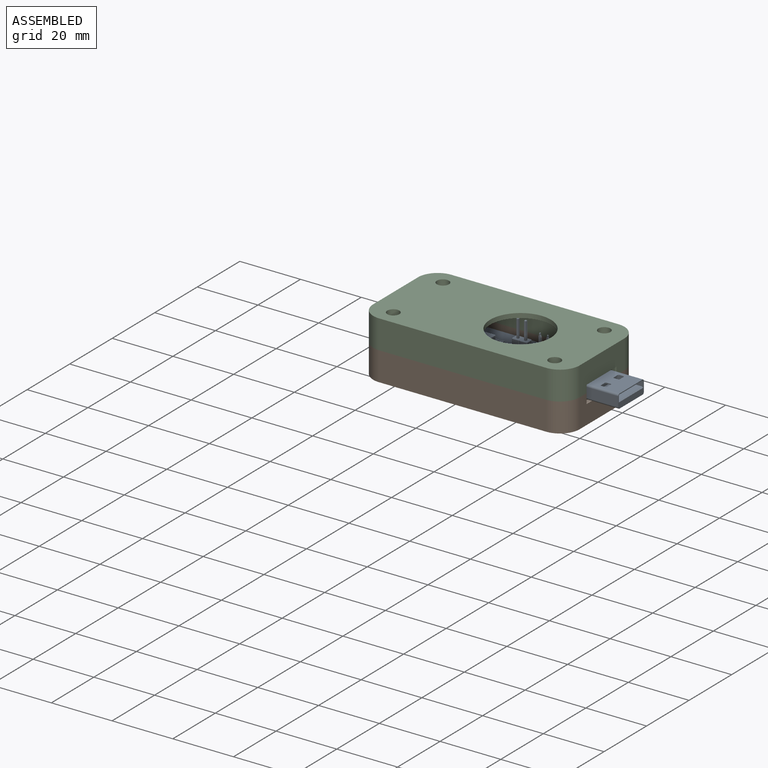
[diagram: assembled view]
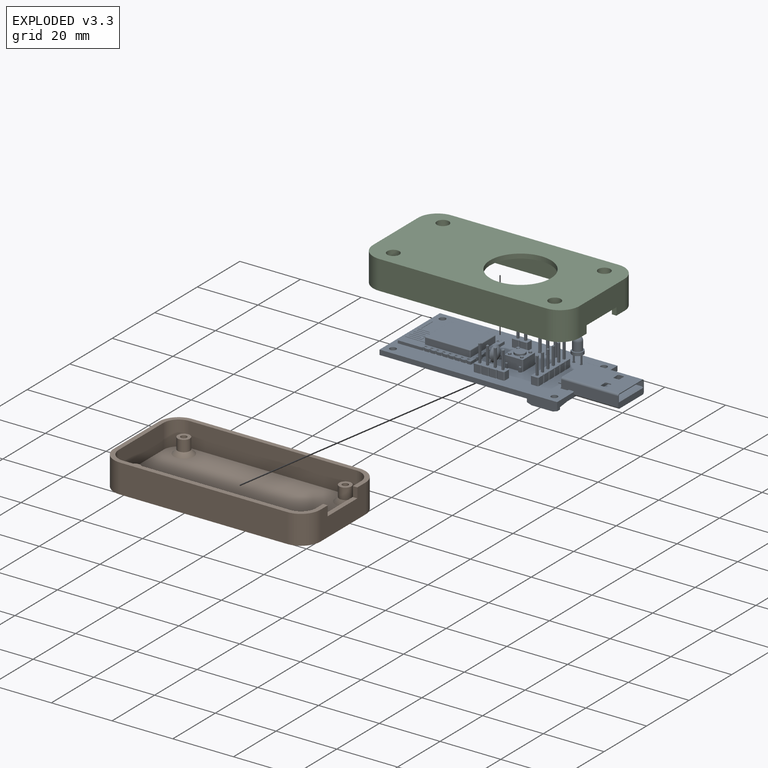
[diagram: exploded view]
GUIDED TOUR — FREECAD ASSEMBLY "dhtmon"

This assembly has 3 components, labeled P0..P2 below (a component is one placed body or linked part; the same part can appear more than once), held together by 0 modeled joints plus 3 derived contact edges. A joint is a constraint between two components; its type names the relative motion it leaves free:
  CONTACT — a derived adjacency edge — the two components touch in the source model (clearance under 2% of the assembly's diagonal); it is measured from the geometry, not a modeled constraint.
Axis/direction vectors are unit vectors and 'through' points are millimeter coordinates, both in the assembly's world frame.

MATES
  1. CONTACT "contact_0_1": P0 <-> P1, contact direction (-0.836, -0.013, -0.549) through (59.06, 26.17, 5.00) mm (derived from contact, not a modeled constraint)
  2. CONTACT "contact_0_2": P0 <-> P2, contact direction (0.000, 0.000, 1.000) through (6.00, 4.94, 6.65) mm (derived from contact, not a modeled constraint)
  3. CONTACT "contact_1_2": P1 <-> P2, contact direction (0.000, 0.000, 1.000) through (0.02, 4.51, 8.00) mm (derived from contact, not a modeled constraint)

ASSEMBLY ORDER
  1. P0 — the base component [order heuristic]
  2. P1 — core [order heuristic]
  3. P2 [order verified]
Order-tag legend:
  [order verified] — this step's position reverses a verified removal order: the component was checked to insert without passing through the ones already placed.
  [order heuristic] — the first 2 components form the assembly's core: parts whose collision-free extraction could not be verified, listed in mate-graph order.

Of the 3 components, 2 carry a construction recipe — the FreeCAD feature program (sketches with constraints, then the solid features that consume them) that regenerates the part from scratch, quoted from this document or from the linked companion document it references; the rest are supplied as boundary geometry only. The tour below walks the components in assembly order: each is shown spotlighted twice — in the assembled view, then in the exploded view, where a leader line traces a displaced component back to its assembled socket (components that stay in place when exploded have no leader line; saturated green if recipe-attached, orange if geometry-only; every other component desaturated gray) — followed by its recipe or geometry summary and the mates that hold it.
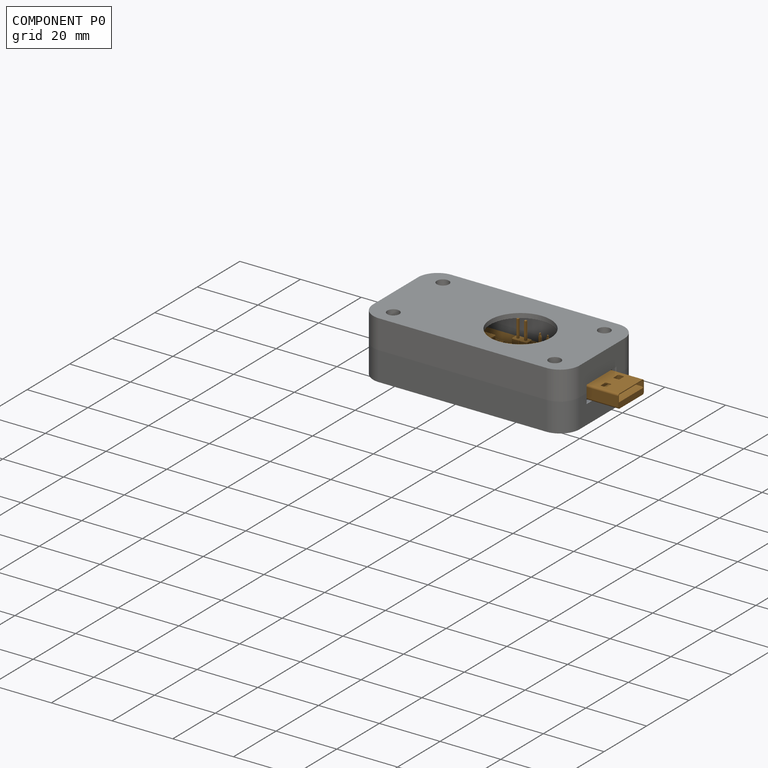
[diagram: component P0 — assembled]
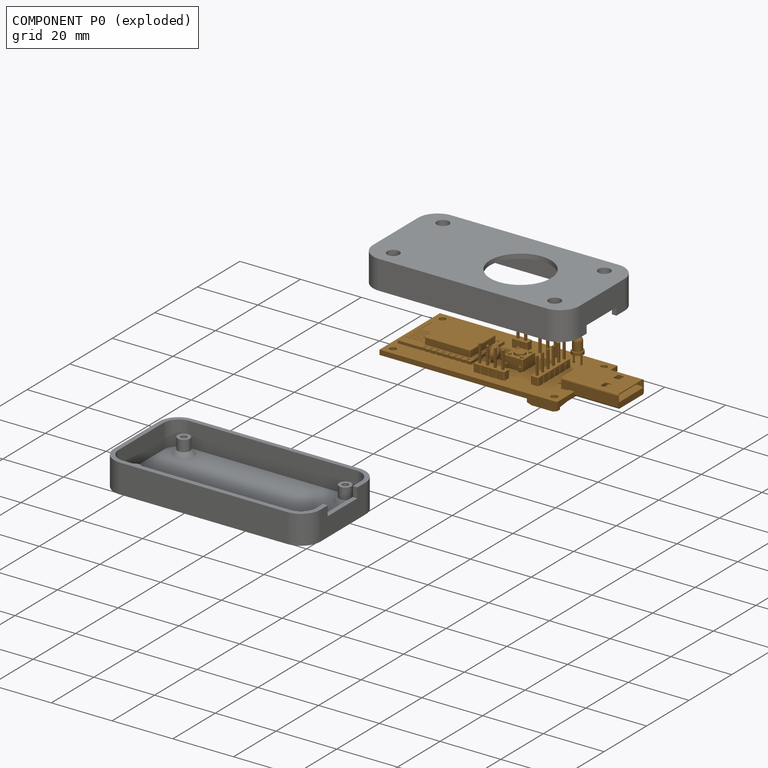
[diagram: component P0 — exploded]
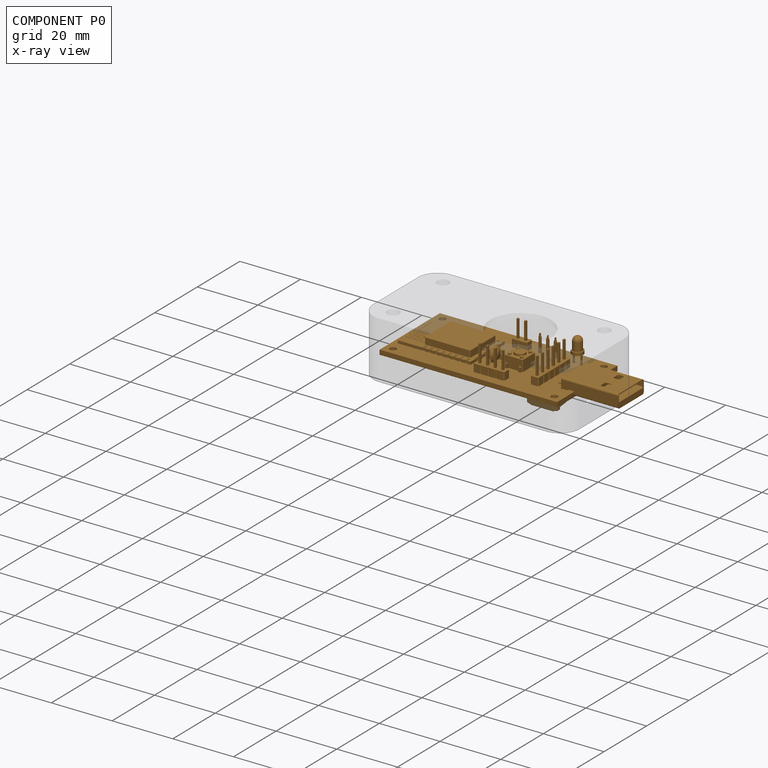
[diagram: component P0 — x-ray view]
COMPONENT P0 — geometry summary ("dhtmon"; no construction recipe available for this part):
  bounding box: 73.1 x 28.4 x 23.5 mm
  tessellated surface: 78,392 triangles
  volume: 4970 mm^3 (10% of its bounding box)
Held by: resting contact with P1 (derived edge); resting contact with P2 (derived edge).
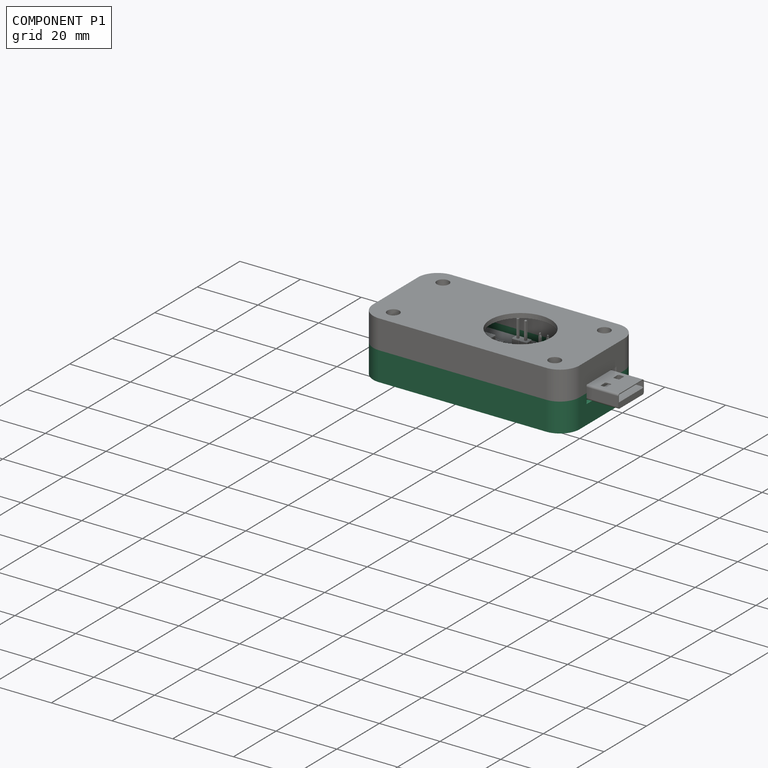
[diagram: component P1 — assembled]
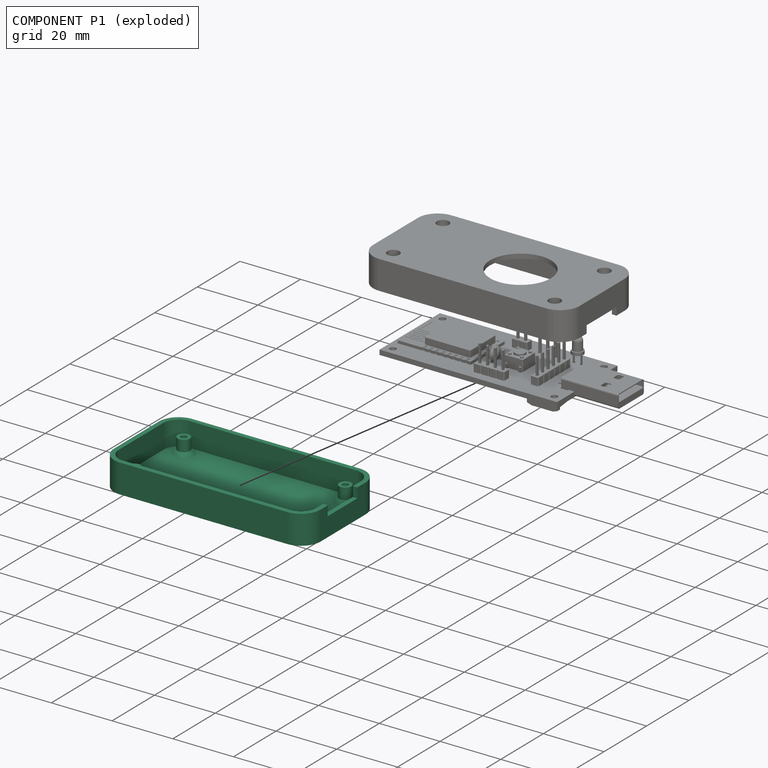
[diagram: component P1 — exploded]
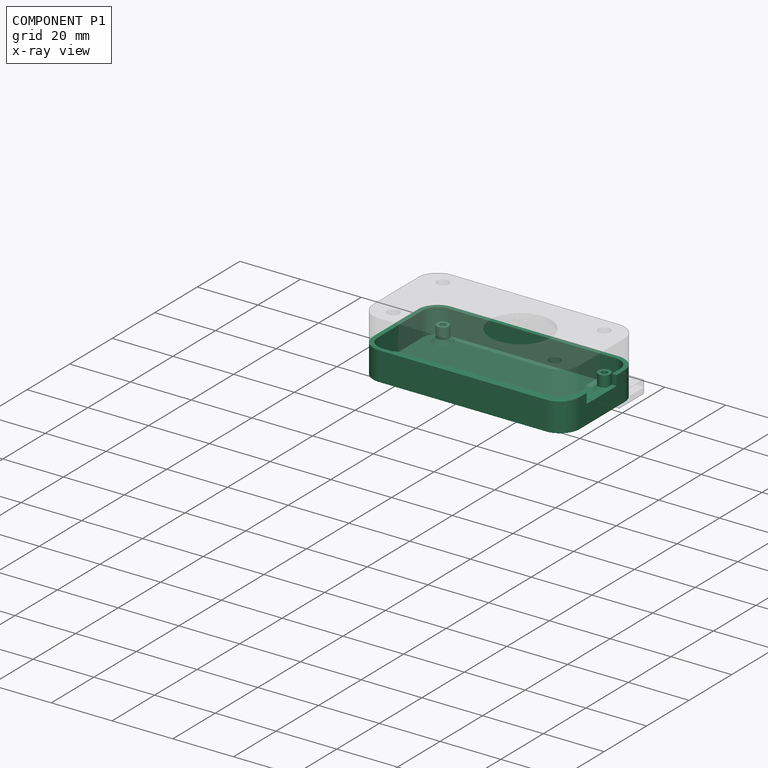
[diagram: component P1 — x-ray view]
COMPONENT P1 — recipe-attached ("Box_Bottom", modeled in this document).
Held by: resting contact with P0 (derived edge); resting contact with P2 (derived edge).
Construction recipe (the document's own serialized feature program — sketch geometry with constraints, then the solid features built on it; lengths are millimeters unless a unit is written):

FEATURE [PartDesign::AdditiveBox] Box
  AttacherType = Attacher::AttachEngine3D
  Height = 8
  Length = 65
  Width = 31
FEATURE [PartDesign::Fillet] Fillet
  Base = -> Box [Edge5,Edge7,Edge3,Edge1]
  BaseFeature = -> Box
  Radius = 5
  SupportTransform = false
  UseAllEdges = false
FEATURE [PartDesign::Thickness] Thickness
  Base = -> Fillet [Face2]
  BaseFeature = -> Fillet
  Intersection = false
  Join = 1
  Mode = 1
  SupportTransform = false
  Value = 1.5
FEATURE [Sketcher::SketchObject] Sketch
  FullyConstrained = true
  MapMode = 5
  Support = -> [Thickness]
  expr: Constraints[10] = (Box.Width - .Constraints.HW) / 2
  expr: Constraints[11] = (Box.Length - .Constraints.HL) / 2
  sketch-geometry (12):
    g0: LineSegment StartX=5.915 StartY=27.155 StartZ=0 EndX=59.085 EndY=27.155 EndZ=0
    g1: LineSegment StartX=59.085 StartY=27.155 StartZ=0 EndX=59.085 EndY=3.845 EndZ=0
    g2: LineSegment StartX=59.085 StartY=3.845 StartZ=0 EndX=5.915 EndY=3.845 EndZ=0
    g3: LineSegment StartX=5.915 StartY=3.845 StartZ=0 EndX=5.915 EndY=27.155 EndZ=0
    g4: Circle CenterX=5.915 CenterY=27.155 CenterZ=0 NormalX=0 NormalY=0 NormalZ=1 AngleXU=0 Radius=1
    g5: Circle CenterX=5.915 CenterY=3.845 CenterZ=0 NormalX=0 NormalY=0 NormalZ=1 AngleXU=0 Radius=1
    g6: Circle CenterX=59.085 CenterY=3.845 CenterZ=0 NormalX=0 NormalY=0 NormalZ=1 AngleXU=0 Radius=1
    g7: Circle CenterX=59.085 CenterY=27.155 CenterZ=0 NormalX=0 NormalY=0 NormalZ=1 AngleXU=0 Radius=1
    g8: Circle CenterX=5.915 CenterY=27.155 CenterZ=0 NormalX=0 NormalY=0 NormalZ=1 AngleXU=0 Radius=2
    g9: Circle CenterX=5.915 CenterY=3.845 CenterZ=0 NormalX=0 NormalY=0 NormalZ=1 AngleXU=0 Radius=2
    g10: Circle CenterX=59.085 CenterY=3.845 CenterZ=0 NormalX=0 NormalY=0 NormalZ=1 AngleXU=0 Radius=2
    g11: Circle CenterX=59.085 CenterY=27.155 CenterZ=0 NormalX=0 NormalY=0 NormalZ=1 AngleXU=0 Radius=2
  constraints (28):
    c: Coincident(g0,g1)
    c: Coincident(g1,g2)
    c: Coincident(g2,g3)
    c: Coincident(g3,g0)
    c: Horizontal(g0)
    c: Horizontal(g2)
    c: Vertical(g1)
    c: Vertical(g3)
    c: DistanceX(g0,g0) = 53.17  'HL'
    c: DistanceY(g1,g1) = 23.31  'HW'
    c: DistanceY(g2) = 3.845
    c: DistanceX(g2) = 5.915
    c: Coincident(g4,g0)
    c: Coincident(g5,g2)
    c: Coincident(g6,g1)
    c: Coincident(g7,g0)
    c: Equal(g7,g4)
    c: Equal(g7,g5)
    c: Equal(g7,g6)
    c: Diameter(g7) = 2
    c: Coincident(g8,g4)
    c: Coincident(g9,g5)
    c: Coincident(g10,g6)
    c: Coincident(g11,g7)
    c: Equal(g11,g8)
    c: Equal(g11,g9)
    c: Equal(g11,g10)
    c: Diameter(g11) = 4
FEATURE [PartDesign::Pad] Pad
  BaseFeature = -> Thickness
  Direction = (0,0,1)
  Length = 5
  Length2 = 10
  Profile = -> Sketch
  ReferenceAxis = -> Sketch [N_Axis]
  Type = 0
FEATURE [Sketcher::SketchObject] Sketch001
  FullyConstrained = true
  MapMode = 5
  Placement = pos=(66.5,0,0) rot=(0.57735,0.57735,0.57735;2.0944rad)
  Support = -> [Pad]
  expr: .Constraints.REFH = (Box.Width - .Constraints.HL) / 2 - 0.25 mm
  sketch-geometry (4):
    g0: LineSegment StartX=8.25 StartY=10.25 StartZ=0 EndX=22.25 EndY=10.25 EndZ=0
    g1: LineSegment StartX=22.25 StartY=10.25 StartZ=0 EndX=22.25 EndY=4.75 EndZ=0
    g2: LineSegment StartX=22.25 StartY=4.75 StartZ=0 EndX=8.25 EndY=4.75 EndZ=0
    g3: LineSegment StartX=8.25 StartY=4.75 StartZ=0 EndX=8.25 EndY=10.25 EndZ=0
  constraints (12):
    c: Coincident(g0,g1)
    c: Coincident(g1,g2)
    c: Coincident(g2,g3)
    c: Coincident(g3,g0)
    c: Horizontal(g0)
    c: Horizontal(g2)
    c: Vertical(g1)
    c: Vertical(g3)
    c: DistanceX(g0,g0) = 14  'HL'
    c: DistanceY(g3,g3) = 5.5  'HH'
    c: DistanceX(g2) = 8.25  'REFH'
    c: DistanceY(g2) = 4.75
FEATURE [PartDesign::Pocket] Pocket
  BaseFeature = -> Pad
  Direction = (-1,0,0)
  Length = 5
  Length2 = 5
  Profile = -> Sketch001
  ReferenceAxis = -> Sketch001 [N_Axis]
  Type = 2
FEATURE [PartDesign::Chamfer] Chamfer001
  Angle = 45
  Base = -> Pocket [Edge36,Edge35,Edge33,Edge34]
  BaseFeature = -> Pocket
  ChamferType = 0
  FlipDirection = false
  Size = 1.3
  Size2 = 1
  SupportTransform = false
  UseAllEdges = false
FEATURE [PartDesign::Body] Body  label="Box_Bottom"
  Group = -> [Box,Fillet,Thickness,Sketch,Pad,Sketch001,Pocket,Chamfer001]
  Origin = -> Origin
  Tip = -> Chamfer001
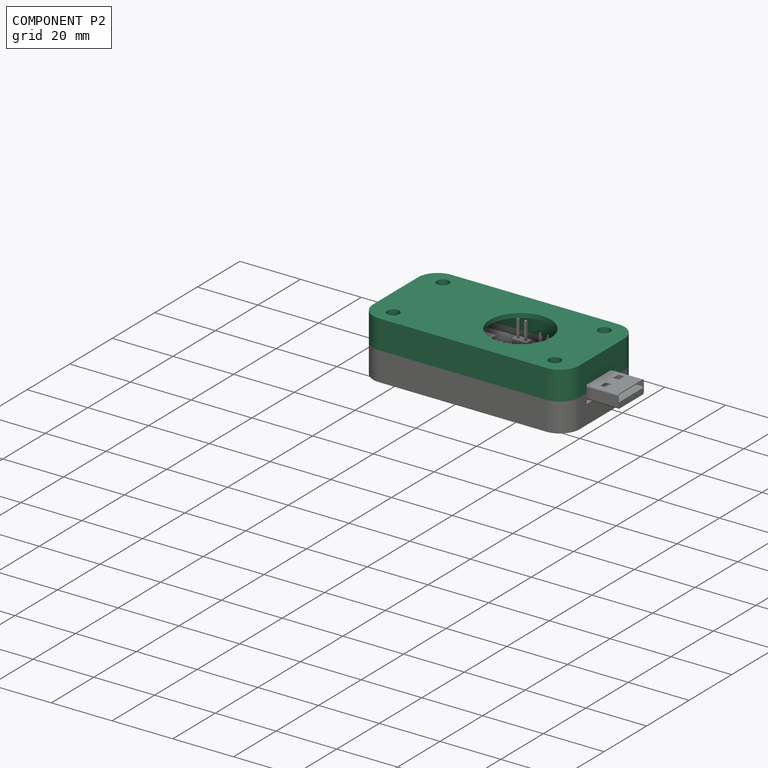
[diagram: component P2 — assembled]
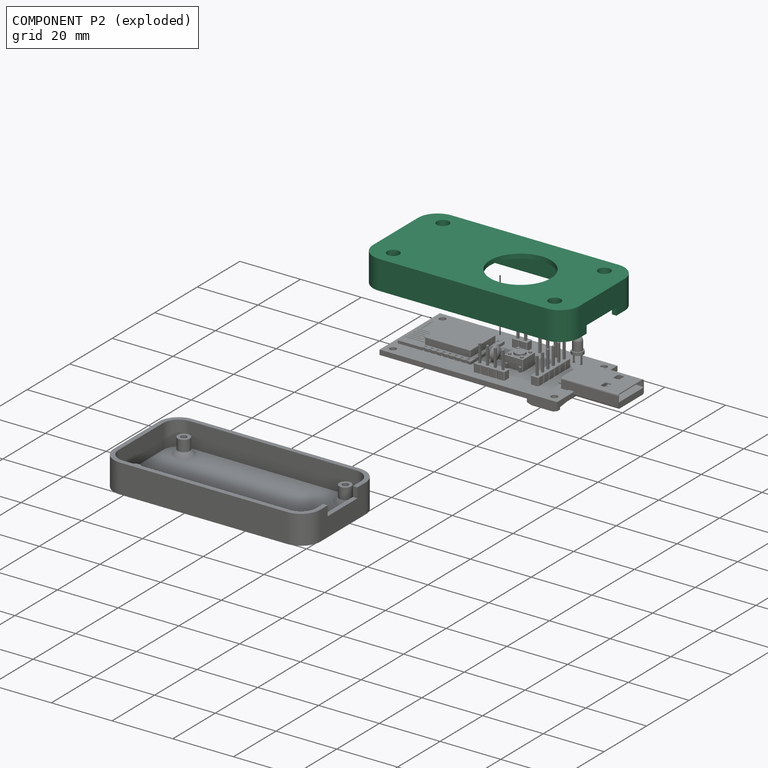
[diagram: component P2 — exploded]
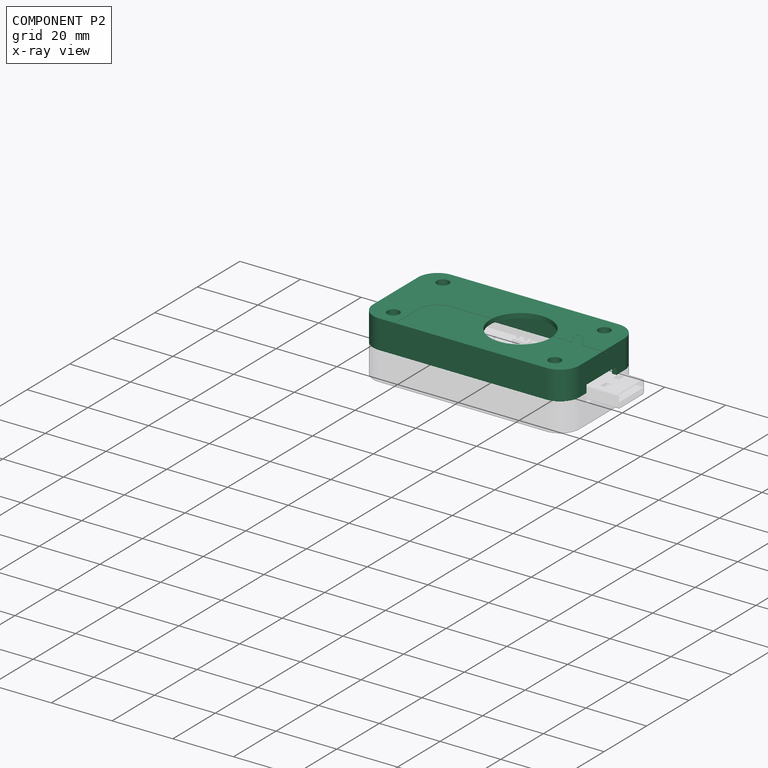
[diagram: component P2 — x-ray view]
COMPONENT P2 — recipe-attached ("Body001", modeled in this document).
Held by: resting contact with P0 (derived edge); resting contact with P1 (derived edge).
Construction recipe (the document's own serialized feature program — sketch geometry with constraints, then the solid features built on it; lengths are millimeters unless a unit is written):

FEATURE [PartDesign::AdditiveBox] Box001
  AttacherType = Attacher::AttachEngine3D
  Height = 8
  Length = 65
  MapMode = 5
  Placement = pos=(0,0,8) rot=(0,0,1;0rad)
  Support = -> [Pocket]
  Width = 31
  expr: Height = Box.Height
  expr: Length = Box.Length
  expr: Width = Box.Width
FEATURE [PartDesign::Fillet] Fillet001
  Base = -> Box001 [Edge5,Edge7,Edge1,Edge3]
  BaseFeature = -> Box001
  Placement = pos=(0,0,8) rot=(0,0,1;0rad)
  Radius = 5
  SupportTransform = false
  UseAllEdges = false
FEATURE [PartDesign::Thickness] Thickness001
  Base = -> Fillet001 [Face5]
  BaseFeature = -> Fillet001
  Intersection = false
  Join = 1
  Mode = 0
  SupportTransform = false
  Value = 1.5
FEATURE [Sketcher::SketchObject] Sketch002
  FullyConstrained = true
  MapMode = 5
  Placement = pos=(66.5,0,0) rot=(0.57735,0.57735,0.57735;2.0944rad)
  Support = -> [Thickness001]
  expr: Constraints[11] = Box.Height
  expr: Constraints[8] = Sketch001.Constraints.REFH
  expr: Constraints[9] = Sketch001.Constraints.HL
  sketch-geometry (4):
    g0: LineSegment StartX=8.25 StartY=8 StartZ=0 EndX=22.25 EndY=8 EndZ=0
    g1: LineSegment StartX=22.25 StartY=8 StartZ=0 EndX=22.25 EndY=10.5 EndZ=0
    g2: LineSegment StartX=22.25 StartY=10.5 StartZ=0 EndX=8.25 EndY=10.5 EndZ=0
    g3: LineSegment StartX=8.25 StartY=10.5 StartZ=0 EndX=8.25 EndY=8 EndZ=0
  constraints (12):
    c: Coincident(g0,g1)
    c: Coincident(g1,g2)
    c: Coincident(g2,g3)
    c: Coincident(g3,g0)
    c: Horizontal(g0)
    c: Horizontal(g2)
    c: Vertical(g1)
    c: Vertical(g3)
    c: DistanceX(g2) = 8.25
    c: DistanceX(g2,g2) = 14
    c: DistanceY(g3,g3) = 2.5
    c: DistanceY(g0) = 8
FEATURE [PartDesign::Pocket] Pocket001
  BaseFeature = -> Thickness001
  Direction = (-1,0,0)
  Length = 5
  Length2 = 5
  Profile = -> Sketch002
  ReferenceAxis = -> Sketch002 [N_Axis]
  Type = 2
FEATURE [Sketcher::SketchObject] Sketch003
  FullyConstrained = true
  MapMode = 5
  Placement = pos=(0,0,16) rot=(1,0,0;3.14159rad)
  Support = -> [Pocket001]
  expr: .Constraints.HL = Sketch.Constraints.HL
  expr: .Constraints.HW = Sketch.Constraints.HW
  expr: Constraints[10] = (Box.Length - .Constraints.HL) / 2
  expr: Constraints[11] = -(Box.Width - .Constraints.HW) / 2
  sketch-geometry (8):
    g0: LineSegment StartX=5.915 StartY=-3.845 StartZ=0 EndX=59.085 EndY=-3.845 EndZ=0
    g1: LineSegment StartX=59.085 StartY=-3.845 StartZ=0 EndX=59.085 EndY=-27.155 EndZ=0
    g2: LineSegment StartX=59.085 StartY=-27.155 StartZ=0 EndX=5.915 EndY=-27.155 EndZ=0
    g3: LineSegment StartX=5.915 StartY=-27.155 StartZ=0 EndX=5.915 EndY=-3.845 EndZ=0
    g4: Circle CenterX=59.085 CenterY=-3.845 CenterZ=0 NormalX=0 NormalY=0 NormalZ=1 AngleXU=0 Radius=2.5
    g5: Circle CenterX=59.085 CenterY=-27.155 CenterZ=0 NormalX=0 NormalY=0 NormalZ=1 AngleXU=0 Radius=2.5
    g6: Circle CenterX=5.915 CenterY=-27.155 CenterZ=0 NormalX=0 NormalY=0 NormalZ=1 AngleXU=0 Radius=2.5
    g7: Circle CenterX=5.915 CenterY=-3.845 CenterZ=0 NormalX=0 NormalY=0 NormalZ=1 AngleXU=0 Radius=2.5
  constraints (20):
    c: Coincident(g0,g1)
    c: Coincident(g1,g2)
    c: Coincident(g2,g3)
    c: Coincident(g3,g0)
    c: Horizontal(g0)
    c: Horizontal(g2)
    c: Vertical(g1)
    c: Vertical(g3)
    c: DistanceX(g0,g0) = 53.17  'HL'
    c: DistanceY(g3,g3) = 23.31  'HW'
    c: DistanceX(g2) = 5.915
    c: DistanceY(g0) = -3.845
    c: Coincident(g4,g0)
    c: Coincident(g5,g1)
    c: Coincident(g7,g0)
    c: Equal(g7,g4)
    c: Equal(g7,g5)
    c: Equal(g7,g6)
    c: Diameter(g7) = 5
    c: Coincident(g6,g2)
FEATURE [PartDesign::Pad] Pad001
  BaseFeature = -> Pocket001
  Direction = (0,0,-1)
  Length = 9.3
  Length2 = 10
  Profile = -> Sketch003
  ReferenceAxis = -> Sketch003 [N_Axis]
  Type = 0
FEATURE [Sketcher::SketchObject] Sketch004
  FullyConstrained = true
  MapMode = 5
  Placement = pos=(0,0,17.5) rot=(0,0,1;0rad)
  Support = -> [Pad001]
  expr: .Constraints.HL = Sketch.Constraints.HL
  expr: .Constraints.HW = Sketch.Constraints.HW
  expr: Constraints[10] = (Box.Length - .Constraints.HL) / 2
  expr: Constraints[11] = (Box.Width - .Constraints.HW) / 2
  sketch-geometry (8):
    g0: LineSegment StartX=5.915 StartY=27.155 StartZ=0 EndX=59.085 EndY=27.155 EndZ=0
    g1: LineSegment StartX=59.085 StartY=27.155 StartZ=0 EndX=59.085 EndY=3.845 EndZ=0
    g2: LineSegment StartX=59.085 StartY=3.845 StartZ=0 EndX=5.915 EndY=3.845 EndZ=0
    g3: LineSegment StartX=5.915 StartY=3.845 StartZ=0 EndX=5.915 EndY=27.155 EndZ=0
    g4: Circle CenterX=5.915 CenterY=27.155 CenterZ=0 NormalX=0 NormalY=0 NormalZ=1 AngleXU=0 Radius=1
    g5: Circle CenterX=59.085 CenterY=27.155 CenterZ=0 NormalX=0 NormalY=0 NormalZ=1 AngleXU=0 Radius=1
    g6: Circle CenterX=59.085 CenterY=3.845 CenterZ=0 NormalX=0 NormalY=0 NormalZ=1 AngleXU=0 Radius=1
    g7: Circle CenterX=5.915 CenterY=3.845 CenterZ=0 NormalX=0 NormalY=0 NormalZ=1 AngleXU=0 Radius=1
  constraints (20):
    c: Coincident(g0,g1)
    c: Coincident(g1,g2)
    c: Coincident(g2,g3)
    c: Coincident(g3,g0)
    c: Horizontal(g0)
    c: Horizontal(g2)
    c: Vertical(g1)
    c: Vertical(g3)
    c: DistanceX(g0,g0) = 53.17  'HL'
    c: DistanceY(g3,g3) = 23.31  'HW'
    c: DistanceX(g2) = 5.915
    c: DistanceY(g2) = 3.845
    c: Coincident(g4,g0)
    c: Coincident(g5,g0)
    c: Coincident(g7,g2)
    c: Coincident(g6,g1)
    c: Equal(g6,g5)
    c: Equal(g6,g4)
    c: Equal(g6,g7)
    c: Diameter(g6) = 2
FEATURE [PartDesign::Hole] Hole
  BaseFeature = -> Pad001
  CustomThreadClearance = 0
  Depth = 155.115
  DepthType = 1
  Diameter = 2.2
  DrillForDepth = false
  DrillPoint = 1
  DrillPointAngle = 118
  HoleCutCountersinkAngle = 90
  HoleCutCustomValues = false
  HoleCutDepth = 2
  HoleCutDiameter = 4
  HoleCutType = 1
  ModelThread = false
  Profile = -> Sketch004
  Tapered = false
  TaperedAngle = 90
  ThreadClass = 0
  ThreadDepth = 155.115
  ThreadDepthType = 0
  ThreadDirection = 0
  ThreadFit = 1
  ThreadSize = 6
  ThreadType = 1
  Threaded = false
  UseCustomThreadClearance = false
FEATURE [Sketcher::SketchObject] Sketch005
  FullyConstrained = true
  MapMode = 5
  Placement = pos=(0,0,17.5) rot=(0,0,1;0rad)
  Support = -> [Hole]
  sketch-geometry (1):
    g0: Circle CenterX=40 CenterY=15 CenterZ=0 NormalX=0 NormalY=0 NormalZ=1 AngleXU=0 Radius=10
  constraints (3):
    c: DistanceY(g0) = 15
    c: DistanceX(g0) = 40
    c: Diameter(g0) = 20
FEATURE [PartDesign::Pocket] Pocket002
  BaseFeature = -> Hole
  Direction = (0,0,-1)
  Length = 5
  Length2 = 5
  Profile = -> Sketch005
  ReferenceAxis = -> Sketch005 [N_Axis]
  Type = 2
FEATURE [PartDesign::Chamfer] Chamfer
  Angle = 45
  Base = -> Pocket002 [Edge13,Edge16,Edge12,Edge15]
  BaseFeature = -> Pocket002
  ChamferType = 0
  FlipDirection = false
  Size = 1.3
  Size2 = 1
  SupportTransform = false
  UseAllEdges = false
FEATURE [PartDesign::Body] Body001
  Group = -> [Box001,Fillet001,Thickness001,Sketch002,Pocket001,Sketch003,Pad001,Sketch004,Hole,Sketch005,Pocket002,Chamfer]
  Origin = -> Origin010
  Tip = -> Chamfer
PROVENANCE & LICENSES
Assembly and component geometry: a FreeCAD (.FCStd) document from a public repository crawl; components, placements and joints were extracted with FreeCAD and each solid tessellated.
Construction recipes: the document's own serialized feature recipes (and, for linked parts, the recipes of companion documents from the same project).
License: apache-2.0.
Joints: native FreeCAD joints and A2plus constraints are mapped to standard mate types; edges marked 'derived from contact' connect touching components and are measured from the geometry, not modeled.
Verification: 2 of this assembly's 3 components carry a construction recipe (2 from this document itself); the rest are geometry-only. Every component's tessellation passed the extraction mesh gates (mesh-volume checksum against the B-rep where available, bounding-box inflation <= 2%).
Renders: orthographic iso camera (az 35 / el 25); the floor grid conveys scale (grid pitch printed in each image; no ruler). In the exploded view each component is displaced by its stored offset vector: the offsets alone carry the explosion direction (mate normal/axis signs are not orientation cues and do not encode it), and separation distances are assigned per mate-chain, not proportionally to assembly-order depth.
